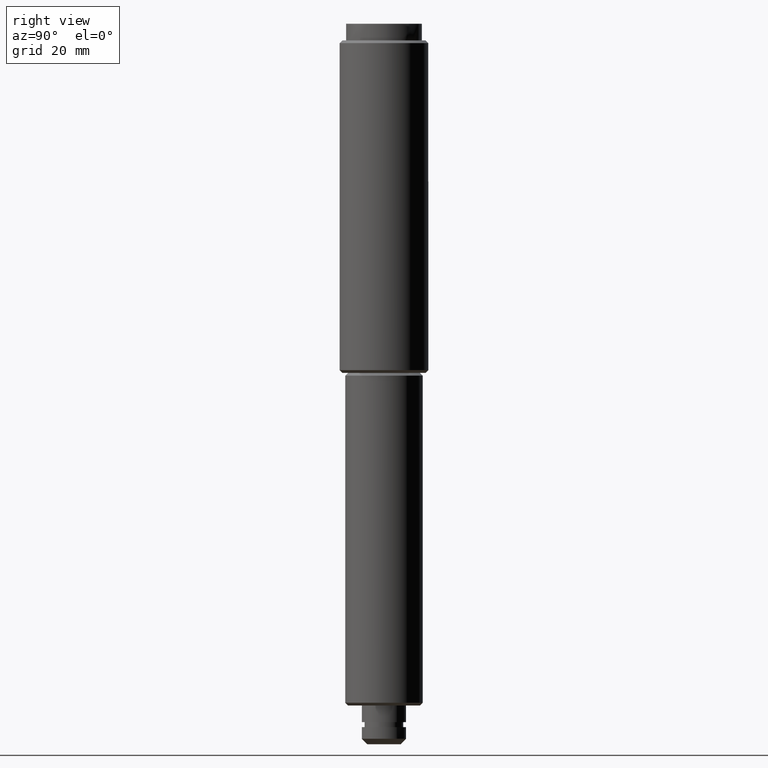
[diagram: clean part render]
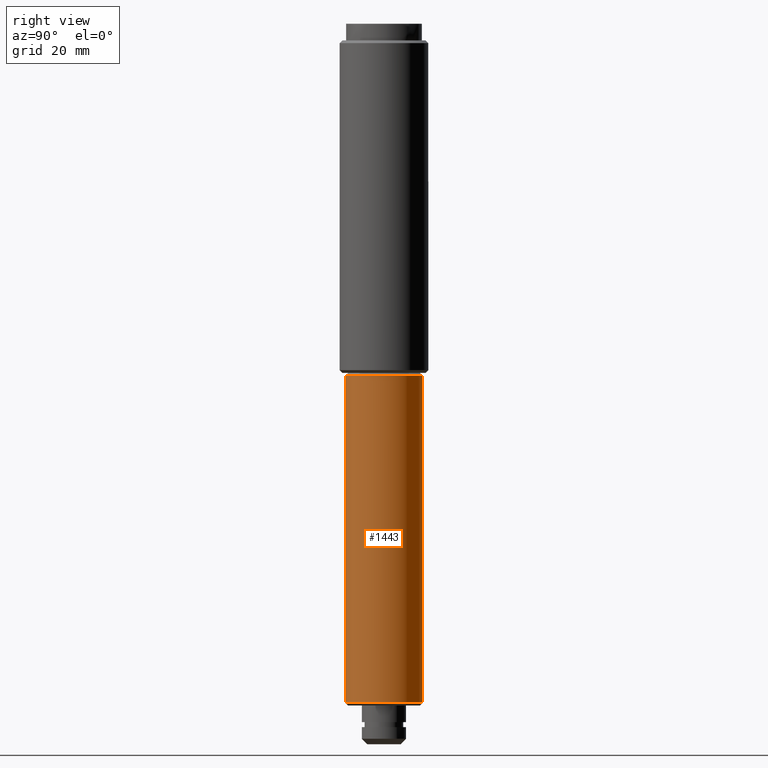
[diagram: same view with one face highlighted and labeled with its STEP entity id]
A machine part, right view. The second image highlights one B-rep face of the part: STEP entity #1443.
In plain terms, the highlighted face is a freeform B-spline surface patch.
Its self-contained STEP definition (entity closure, byte-faithful):
#1016=CARTESIAN_POINT('',(0.868896014641996,6.945863496768364,66.500000000000000));
#1017=VERTEX_POINT('',#1016);
#1074=CARTESIAN_POINT('',(-0.061085748649971,-6.999733461447665,66.500000000000128));
#1075=VERTEX_POINT('',#1074);
#1081=CARTESIAN_POINT('',(7.0,0.0,66.500000000000000));
#1082=VERTEX_POINT('',#1081);
#1083=CARTESIAN_POINT('',(7.0,0.0,66.500000000000000));
#1084=CARTESIAN_POINT('',(6.999999999999999,-6.999999999999999,66.500000000000014));
#1085=CARTESIAN_POINT('',(0.0,-7.0,66.500000000000000));
#1086=CARTESIAN_POINT('',(-0.030543456067652,-7.0,66.499999999999986));
#1087=CARTESIAN_POINT('',(-0.061085748649971,-6.999733461447665,66.500000000000128));
#1095=(BOUNDED_CURVE()B_SPLINE_CURVE(2,(#1083,#1084,#1085,#1086,#1087),.UNSPECIFIED.,.F.,.U.)B_SPLINE_CURVE_WITH_KNOTS((3,2,3),(0.500000000000000,0.750000000000000,0.751539894351229),.UNSPECIFIED.)CURVE()GEOMETRIC_REPRESENTATION_ITEM()RATIONAL_B_SPLINE_CURVE((1.0,0.707106781186547,1.0,0.998195901547343,0.996414028062817))REPRESENTATION_ITEM(''));
#1096=EDGE_CURVE('',#1082,#1075,#1095,.T.);
#1098=CARTESIAN_POINT('',(0.868896014641996,6.945863496768364,66.500000000000000));
#1099=CARTESIAN_POINT('',(6.999999999999998,6.178890200902438,66.500000000000000));
#1100=CARTESIAN_POINT('',(7.0,0.0,66.500000000000000));
#1108=(BOUNDED_CURVE()B_SPLINE_CURVE(2,(#1098,#1099,#1100),.UNSPECIFIED.,.F.,.U.)B_SPLINE_CURVE_WITH_KNOTS((3,3),(0.271473928974741,0.500000000000000),.UNSPECIFIED.)CURVE()GEOMETRIC_REPRESENTATION_ITEM()RATIONAL_B_SPLINE_CURVE((0.954005430266879,0.732265053898481,1.0))REPRESENTATION_ITEM(''));
#1109=EDGE_CURVE('',#1017,#1082,#1108,.T.);
#1299=CARTESIAN_POINT('',(0.868895089504906,6.945863612498691,7.499999999999996));
#1300=VERTEX_POINT('',#1299);
#1316=CARTESIAN_POINT('',(7.0,0.0,7.500000000000000));
#1317=VERTEX_POINT('',#1316);
#1318=CARTESIAN_POINT('',(7.0,0.0,7.500000000000000));
#1319=CARTESIAN_POINT('',(7.0,6.178891859695326,7.499999999999998));
#1320=CARTESIAN_POINT('',(0.868895089504906,6.945863612498691,7.499999999999996));
#1328=(BOUNDED_CURVE()B_SPLINE_CURVE(2,(#1318,#1319,#1320),.UNSPECIFIED.,.F.,.U.)B_SPLINE_CURVE_WITH_KNOTS((3,3),(0.500000000000000,0.728526115950014),.UNSPECIFIED.)CURVE()GEOMETRIC_REPRESENTATION_ITEM()RATIONAL_B_SPLINE_CURVE((1.0,0.732265001265856,0.954005517448479))REPRESENTATION_ITEM(''));
#1329=EDGE_CURVE('',#1317,#1300,#1328,.T.);
#1331=CARTESIAN_POINT('',(-0.061085748777472,-6.999733461446677,7.499999999999998));
#1332=VERTEX_POINT('',#1331);
#1333=CARTESIAN_POINT('',(-0.061085748777472,-6.999733461446677,7.499999999999998));
#1334=CARTESIAN_POINT('',(-0.030543456033782,-7.0,7.500000000000000));
#1335=CARTESIAN_POINT('',(0.0,-7.0,7.500000000000000));
#1336=CARTESIAN_POINT('',(6.999999999999999,-6.999999999999999,7.500000000000000));
#1337=CARTESIAN_POINT('',(7.0,0.0,7.500000000000000));
#1345=(BOUNDED_CURVE()B_SPLINE_CURVE(2,(#1333,#1334,#1335,#1336,#1337),.UNSPECIFIED.,.F.,.U.)B_SPLINE_CURVE_WITH_KNOTS((3,2,3),(0.248460105650475,0.250000000000000,0.500000000000000),.UNSPECIFIED.)CURVE()GEOMETRIC_REPRESENTATION_ITEM()RATIONAL_B_SPLINE_CURVE((0.996414028066762,0.998195901549340,1.0,0.707106781186547,1.0))REPRESENTATION_ITEM(''));
#1346=EDGE_CURVE('',#1332,#1317,#1345,.T.);
#1409=CARTESIAN_POINT('',(0.868896014558805,6.945863496778769,67.975000000000009));
#1410=CARTESIAN_POINT('',(7.054129813517112,6.172118806932546,67.975000000000023));
#1411=CARTESIAN_POINT('',(6.999733461449196,-0.061085748488617,67.975000000000023));
#1412=CARTESIAN_POINT('',(6.938647712960579,-7.060819209937813,67.975000000000023));
#1413=CARTESIAN_POINT('',(-0.061085748488617,-6.999733461449196,67.975000000000023));
#1414=CARTESIAN_POINT('',(0.868896014558805,6.945863496778769,5.988124999999998));
#1415=CARTESIAN_POINT('',(7.054129813517112,6.172118806932546,5.988124999999998));
#1416=CARTESIAN_POINT('',(6.999733461449196,-0.061085748488617,5.988124999999997));
#1417=CARTESIAN_POINT('',(6.938647712960579,-7.060819209937813,5.988124999999998));
#1418=CARTESIAN_POINT('',(-0.061085748488617,-6.999733461449196,5.988124999999997));
#1426=(BOUNDED_SURFACE()B_SPLINE_SURFACE(2,1,((#1409,#1414),(#1410,#1415),(#1411,#1416),(#1412,#1417),(#1413,#1418)),.UNSPECIFIED.,.F.,.F.,.U.)B_SPLINE_SURFACE_WITH_KNOTS((3,2,3),(2,2),(0.0,10.670141366730920,22.268121113177578),(0.0,61.986875000000033),.UNSPECIFIED.)GEOMETRIC_REPRESENTATION_ITEM()RATIONAL_B_SPLINE_SURFACE(((0.956886118190660,0.956886118190660),(0.730538238691624,0.730538238691624),(1.0,1.0),(0.707106781186548,0.707106781186548),(1.0,1.0)))REPRESENTATION_ITEM('')SURFACE());
#1427=ORIENTED_EDGE('',*,*,#1109,.T.);
#1428=ORIENTED_EDGE('',*,*,#1096,.T.);
#1429=CARTESIAN_POINT('',(-0.061085748649971,-6.999733461447665,66.500000000000128));
#1430=CARTESIAN_POINT('',(-0.061085748777472,-6.999733461446677,7.499999999999998));
#1431=QUASI_UNIFORM_CURVE('',1,(#1429,#1430),.UNSPECIFIED.,.F.,.U.);
#1432=EDGE_CURVE('',#1075,#1332,#1431,.T.);
#1433=ORIENTED_EDGE('',*,*,#1432,.T.);
#1434=ORIENTED_EDGE('',*,*,#1346,.T.);
#1435=ORIENTED_EDGE('',*,*,#1329,.T.);
#1436=CARTESIAN_POINT('',(0.868896014641996,6.945863496768364,66.500000000000000));
#1437=CARTESIAN_POINT('',(0.868895089504906,6.945863612498691,7.499999999999996));
#1438=QUASI_UNIFORM_CURVE('',1,(#1436,#1437),.UNSPECIFIED.,.F.,.U.);
#1439=EDGE_CURVE('',#1017,#1300,#1438,.T.);
#1440=ORIENTED_EDGE('',*,*,#1439,.F.);
#1441=EDGE_LOOP('',(#1427,#1428,#1433,#1434,#1435,#1440));
#1442=FACE_OUTER_BOUND('',#1441,.T.);
#1443=ADVANCED_FACE('',(#1442),#1426,.T.);